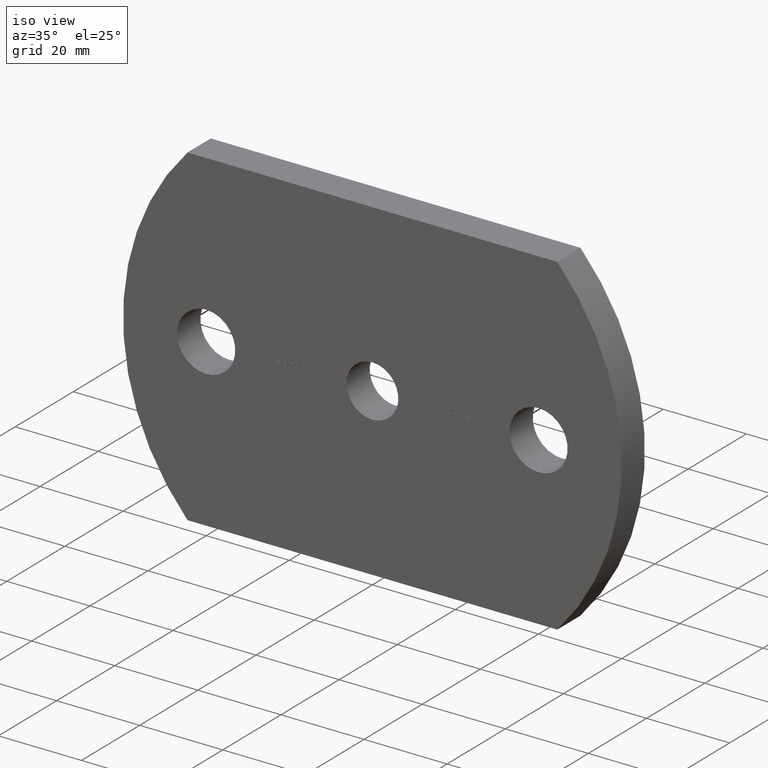
[diagram: clean part render]
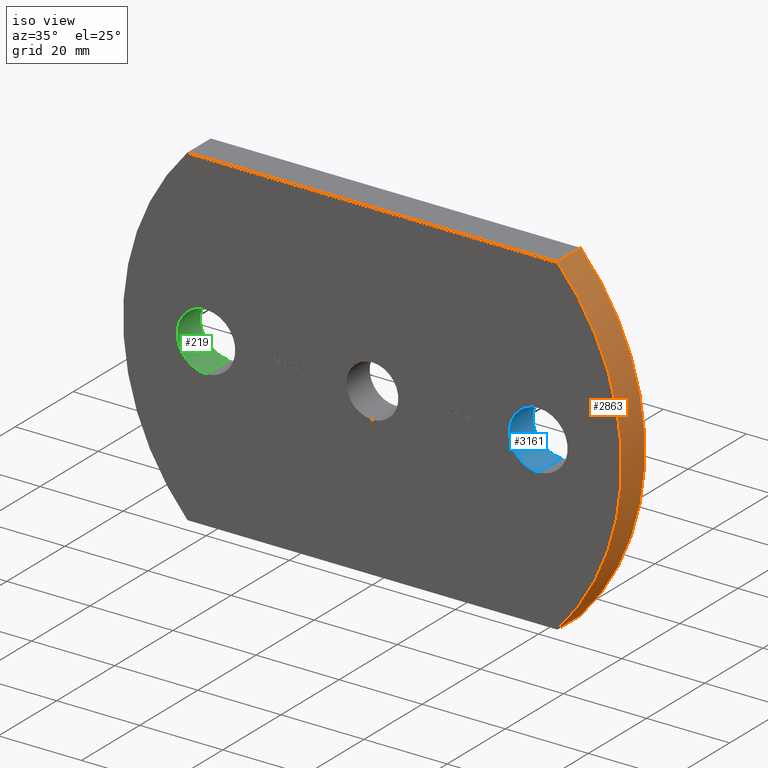
[diagram: same view with three faces highlighted in distinct colors, each labeled with its STEP entity id]
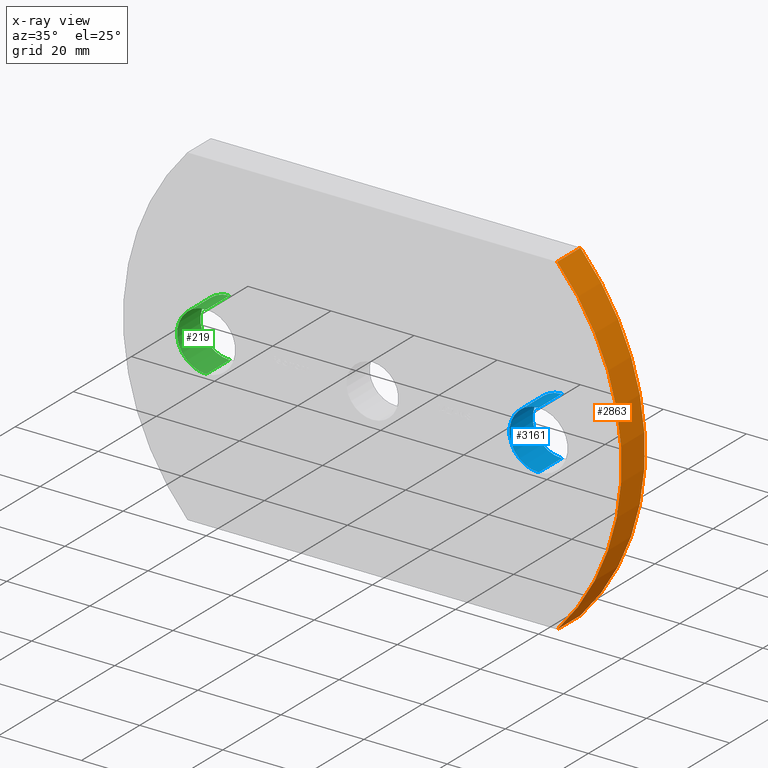
[diagram: x-ray of the same camera — body ghosted, the three highlighted faces saturated]
A machine part, iso view with three faces highlighted in distinct colors.
The next image is the same camera in x-ray (body ghosted, the three faces saturated) — at least one of them is partly hidden behind the body in this view.
Their STEP definitions:

[orange] entity #2863 — the highlighted cylindrical surface (partial cylindrical patch) has radius 59.3629 mm, axis along (-0, -1, -0).
#34 = DIRECTION ( 'NONE',  ( -0.0000000000000000000, -1.000000000000000000, -0.0000000000000000000 ) ) ;
#657 = EDGE_LOOP ( 'NONE', ( #7325, #6692, #3630, #1542 ) ) ;
#933 = DIRECTION ( 'NONE',  ( -0.0000000000000000000, -1.000000000000000000, -0.0000000000000000000 ) ) ;
#1102 = DIRECTION ( 'NONE',  ( 0.0000000000000000000, 1.000000000000000000, -0.0000000000000000000 ) ) ;
#1210 = CARTESIAN_POINT ( 'NONE',  ( 44.50000000000002800, 8.000000000000000000, -40.00000000000000700 ) ) ;
#1453 = CYLINDRICAL_SURFACE ( 'NONE', #9623, 59.36290322580656200 ) ;
#1542 = ORIENTED_EDGE ( 'NONE', *, *, #1777, .T. ) ;
#1644 = EDGE_CURVE ( 'NONE', #9632, #7067, #4872, .T. ) ;
#1777 = EDGE_CURVE ( 'NONE', #7680, #9991, #3817, .T. ) ;
#2755 = CIRCLE ( 'NONE', #6405, 59.36290322580656200 ) ;
#2863 = ADVANCED_FACE ( 'NONE', ( #5597 ), #1453, .T. ) ;
#2928 = CARTESIAN_POINT ( 'NONE',  ( 44.50000000000005700, 0.0000000000000000000, 39.99999999999999300 ) ) ;
#2987 = CARTESIAN_POINT ( 'NONE',  ( 44.50000000000005700, 8.000000000000000000, 39.99999999999999300 ) ) ;
#3304 = DIRECTION ( 'NONE',  ( 0.0000000000000000000, 0.0000000000000000000, -1.000000000000000000 ) ) ;
#3488 = CARTESIAN_POINT ( 'NONE',  ( 0.6370967741934421300, 0.0000000000000000000, 0.0000000000000000000 ) ) ;
#3630 = ORIENTED_EDGE ( 'NONE', *, *, #5804, .F. ) ;
#3817 = LINE ( 'NONE', #6371, #5740 ) ;
#4473 = DIRECTION ( 'NONE',  ( 0.0000000000000000000, 1.000000000000000000, -0.0000000000000000000 ) ) ;
#4684 = CARTESIAN_POINT ( 'NONE',  ( 44.50000000000002800, 8.000000000000000000, -40.00000000000000700 ) ) ;
#4872 = LINE ( 'NONE', #4684, #8320 ) ;
#4935 = DIRECTION ( 'NONE',  ( -0.0000000000000000000, -1.000000000000000000, -0.0000000000000000000 ) ) ;
#5278 = EDGE_CURVE ( 'NONE', #9991, #7067, #2755, .T. ) ;
#5597 = FACE_OUTER_BOUND ( 'NONE', #657, .T. ) ;
#5740 = VECTOR ( 'NONE', #933, 1000.000000000000000 ) ;
#5804 = EDGE_CURVE ( 'NONE', #7680, #9632, #7489, .T. ) ;
#6371 = CARTESIAN_POINT ( 'NONE',  ( 44.50000000000005700, 8.000000000000000000, 39.99999999999999300 ) ) ;
#6405 = AXIS2_PLACEMENT_3D ( 'NONE', #3488, #1102, #8851 ) ;
#6692 = ORIENTED_EDGE ( 'NONE', *, *, #1644, .F. ) ;
#7067 = VERTEX_POINT ( 'NONE', #10086 ) ;
#7325 = ORIENTED_EDGE ( 'NONE', *, *, #5278, .T. ) ;
#7489 = CIRCLE ( 'NONE', #9234, 59.36290322580656200 ) ;
#7629 = DIRECTION ( 'NONE',  ( 0.0000000000000000000, 0.0000000000000000000, -1.000000000000000000 ) ) ;
#7680 = VERTEX_POINT ( 'NONE', #2987 ) ;
#8320 = VECTOR ( 'NONE', #34, 1000.000000000000000 ) ;
#8851 = DIRECTION ( 'NONE',  ( 0.0000000000000000000, 0.0000000000000000000, -1.000000000000000000 ) ) ;
#9157 = CARTESIAN_POINT ( 'NONE',  ( 0.6370967741934421300, 8.000000000000000000, 0.0000000000000000000 ) ) ;
#9234 = AXIS2_PLACEMENT_3D ( 'NONE', #9157, #4473, #7629 ) ;
#9566 = CARTESIAN_POINT ( 'NONE',  ( 0.6370967741934421300, 8.000000000000000000, 0.0000000000000000000 ) ) ;
#9623 = AXIS2_PLACEMENT_3D ( 'NONE', #9566, #4935, #3304 ) ;
#9632 = VERTEX_POINT ( 'NONE', #1210 ) ;
#9991 = VERTEX_POINT ( 'NONE', #2928 ) ;
#10086 = CARTESIAN_POINT ( 'NONE',  ( 44.50000000000002800, 0.0000000000000000000, -40.00000000000000700 ) ) ;

[blue] entity #3161 — the highlighted cylindrical surface (edge-blend (fillet) strip) has radius 7 mm, axis along (-0, 1, -0).
#508 = AXIS2_PLACEMENT_3D ( 'NONE', #4710, #2479, #5709 ) ;
#1315 = LINE ( 'NONE', #2940, #5965 ) ;
#1580 = ORIENTED_EDGE ( 'NONE', *, *, #8682, .F. ) ;
#1700 = EDGE_CURVE ( 'NONE', #2167, #9986, #8068, .T. ) ;
#1988 = CARTESIAN_POINT ( 'NONE',  ( 40.00000000000000000, 0.0000000000000000000, -7.000000000000000000 ) ) ;
#2073 = EDGE_LOOP ( 'NONE', ( #1580, #3399, #9311, #3379 ) ) ;
#2167 = VERTEX_POINT ( 'NONE', #1988 ) ;
#2437 = CARTESIAN_POINT ( 'NONE',  ( 40.00000000000000000, 8.000000000000000000, 0.0000000000000000000 ) ) ;
#2479 = DIRECTION ( 'NONE',  ( -0.0000000000000000000, 1.000000000000000000, -0.0000000000000000000 ) ) ;
#2940 = CARTESIAN_POINT ( 'NONE',  ( 40.00000000000000000, 0.0000000000000000000, 7.000000000000000000 ) ) ;
#3067 = CARTESIAN_POINT ( 'NONE',  ( 40.00000000000000000, 8.000000000000000000, 7.000000000000000000 ) ) ;
#3161 = ADVANCED_FACE ( 'NONE', ( #9647 ), #5485, .F. ) ;
#3189 = CARTESIAN_POINT ( 'NONE',  ( 40.00000000000000000, 0.0000000000000000000, -7.000000000000000000 ) ) ;
#3379 = ORIENTED_EDGE ( 'NONE', *, *, #4250, .F. ) ;
#3399 = ORIENTED_EDGE ( 'NONE', *, *, #1700, .T. ) ;
#4250 = EDGE_CURVE ( 'NONE', #10050, #5874, #1315, .T. ) ;
#4443 = DIRECTION ( 'NONE',  ( -0.0000000000000000000, 1.000000000000000000, -0.0000000000000000000 ) ) ;
#4454 = AXIS2_PLACEMENT_3D ( 'NONE', #2437, #9403, #4755 ) ;
#4710 = CARTESIAN_POINT ( 'NONE',  ( 40.00000000000000000, 0.0000000000000000000, 0.0000000000000000000 ) ) ;
#4755 = DIRECTION ( 'NONE',  ( 0.0000000000000000000, 0.0000000000000000000, 1.000000000000000000 ) ) ;
#5419 = CARTESIAN_POINT ( 'NONE',  ( 40.00000000000000000, 0.0000000000000000000, 7.000000000000000000 ) ) ;
#5485 = CYLINDRICAL_SURFACE ( 'NONE', #508, 7.000000000000000000 ) ;
#5709 = DIRECTION ( 'NONE',  ( 0.0000000000000000000, 0.0000000000000000000, 1.000000000000000000 ) ) ;
#5874 = VERTEX_POINT ( 'NONE', #3067 ) ;
#5965 = VECTOR ( 'NONE', #4443, 1000.000000000000000 ) ;
#6001 = VECTOR ( 'NONE', #6274, 1000.000000000000000 ) ;
#6021 = DIRECTION ( 'NONE',  ( 0.0000000000000000000, 1.000000000000000000, 0.0000000000000000000 ) ) ;
#6055 = DIRECTION ( 'NONE',  ( 0.0000000000000000000, 0.0000000000000000000, 1.000000000000000000 ) ) ;
#6274 = DIRECTION ( 'NONE',  ( -0.0000000000000000000, 1.000000000000000000, -0.0000000000000000000 ) ) ;
#6424 = AXIS2_PLACEMENT_3D ( 'NONE', #9924, #6021, #6055 ) ;
#7195 = EDGE_CURVE ( 'NONE', #9986, #5874, #7255, .T. ) ;
#7255 = CIRCLE ( 'NONE', #4454, 7.000000000000000000 ) ;
#7468 = CARTESIAN_POINT ( 'NONE',  ( 40.00000000000000000, 8.000000000000000000, -7.000000000000000000 ) ) ;
#7584 = CIRCLE ( 'NONE', #6424, 7.000000000000000000 ) ;
#8068 = LINE ( 'NONE', #3189, #6001 ) ;
#8682 = EDGE_CURVE ( 'NONE', #2167, #10050, #7584, .T. ) ;
#9311 = ORIENTED_EDGE ( 'NONE', *, *, #7195, .T. ) ;
#9403 = DIRECTION ( 'NONE',  ( 0.0000000000000000000, 1.000000000000000000, 0.0000000000000000000 ) ) ;
#9647 = FACE_OUTER_BOUND ( 'NONE', #2073, .T. ) ;
#9924 = CARTESIAN_POINT ( 'NONE',  ( 40.00000000000000000, 0.0000000000000000000, 0.0000000000000000000 ) ) ;
#9986 = VERTEX_POINT ( 'NONE', #7468 ) ;
#10050 = VERTEX_POINT ( 'NONE', #5419 ) ;

[green] entity #219 — the highlighted cylindrical surface (edge-blend (fillet) strip) has radius 7 mm, axis along (-0, 1, -0).
#124 = ORIENTED_EDGE ( 'NONE', *, *, #4451, .T. ) ;
#219 = ADVANCED_FACE ( 'NONE', ( #2983 ), #8936, .F. ) ;
#404 = ORIENTED_EDGE ( 'NONE', *, *, #2673, .F. ) ;
#1115 = CARTESIAN_POINT ( 'NONE',  ( -40.00000000000000000, 0.0000000000000000000, 7.000000000000000000 ) ) ;
#1219 = AXIS2_PLACEMENT_3D ( 'NONE', #1305, #7558, #7519 ) ;
#1305 = CARTESIAN_POINT ( 'NONE',  ( -40.00000000000000000, 0.0000000000000000000, 0.0000000000000000000 ) ) ;
#1431 = VERTEX_POINT ( 'NONE', #1115 ) ;
#1762 = CARTESIAN_POINT ( 'NONE',  ( -40.00000000000000000, 0.0000000000000000000, -7.000000000000000000 ) ) ;
#1974 = DIRECTION ( 'NONE',  ( 0.0000000000000000000, 1.000000000000000000, 0.0000000000000000000 ) ) ;
#2100 = CARTESIAN_POINT ( 'NONE',  ( -40.00000000000000000, 8.000000000000000000, 0.0000000000000000000 ) ) ;
#2240 = DIRECTION ( 'NONE',  ( 0.0000000000000000000, 1.000000000000000000, 0.0000000000000000000 ) ) ;
#2547 = CIRCLE ( 'NONE', #7380, 7.000000000000000000 ) ;
#2673 = EDGE_CURVE ( 'NONE', #1431, #7678, #9767, .T. ) ;
#2733 = LINE ( 'NONE', #1762, #9325 ) ;
#2930 = DIRECTION ( 'NONE',  ( 0.0000000000000000000, 0.0000000000000000000, 1.000000000000000000 ) ) ;
#2983 = FACE_OUTER_BOUND ( 'NONE', #4495, .T. ) ;
#3253 = VERTEX_POINT ( 'NONE', #7606 ) ;
#3569 = ORIENTED_EDGE ( 'NONE', *, *, #7969, .T. ) ;
#3629 = AXIS2_PLACEMENT_3D ( 'NONE', #2100, #2240, #2930 ) ;
#3734 = EDGE_CURVE ( 'NONE', #3253, #1431, #2547, .T. ) ;
#4451 = EDGE_CURVE ( 'NONE', #9177, #7678, #7148, .T. ) ;
#4495 = EDGE_LOOP ( 'NONE', ( #6351, #3569, #124, #404 ) ) ;
#6186 = DIRECTION ( 'NONE',  ( -0.0000000000000000000, 1.000000000000000000, -0.0000000000000000000 ) ) ;
#6351 = ORIENTED_EDGE ( 'NONE', *, *, #3734, .F. ) ;
#7148 = CIRCLE ( 'NONE', #3629, 7.000000000000000000 ) ;
#7251 = DIRECTION ( 'NONE',  ( -0.0000000000000000000, 1.000000000000000000, -0.0000000000000000000 ) ) ;
#7350 = CARTESIAN_POINT ( 'NONE',  ( -40.00000000000000000, 0.0000000000000000000, 0.0000000000000000000 ) ) ;
#7380 = AXIS2_PLACEMENT_3D ( 'NONE', #7350, #1974, #8957 ) ;
#7519 = DIRECTION ( 'NONE',  ( 0.0000000000000000000, 0.0000000000000000000, 1.000000000000000000 ) ) ;
#7558 = DIRECTION ( 'NONE',  ( -0.0000000000000000000, 1.000000000000000000, -0.0000000000000000000 ) ) ;
#7606 = CARTESIAN_POINT ( 'NONE',  ( -40.00000000000000000, 0.0000000000000000000, -7.000000000000000000 ) ) ;
#7678 = VERTEX_POINT ( 'NONE', #9868 ) ;
#7969 = EDGE_CURVE ( 'NONE', #3253, #9177, #2733, .T. ) ;
#8659 = VECTOR ( 'NONE', #6186, 1000.000000000000000 ) ;
#8936 = CYLINDRICAL_SURFACE ( 'NONE', #1219, 7.000000000000000000 ) ;
#8957 = DIRECTION ( 'NONE',  ( 0.0000000000000000000, 0.0000000000000000000, 1.000000000000000000 ) ) ;
#9177 = VERTEX_POINT ( 'NONE', #9802 ) ;
#9325 = VECTOR ( 'NONE', #7251, 1000.000000000000000 ) ;
#9337 = CARTESIAN_POINT ( 'NONE',  ( -40.00000000000000000, 0.0000000000000000000, 7.000000000000000000 ) ) ;
#9767 = LINE ( 'NONE', #9337, #8659 ) ;
#9802 = CARTESIAN_POINT ( 'NONE',  ( -40.00000000000000000, 8.000000000000000000, -7.000000000000000000 ) ) ;
#9868 = CARTESIAN_POINT ( 'NONE',  ( -40.00000000000000000, 8.000000000000000000, 7.000000000000000000 ) ) ;